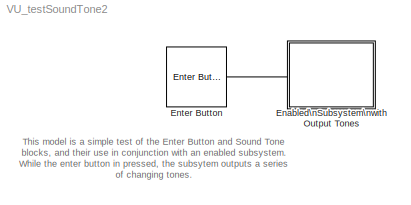
MODEL VU_testSoundTone2
KIND model
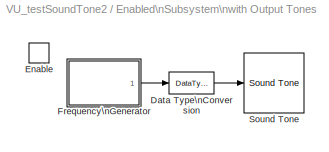
BLOCK [SubSystem] Enabled\nSubsystem\nwith Output Tones
  Ports = [0, 0, 1]
  RequestExecContextInheritance = off
  SID = 2
  TreatAsAtomicUnit = on
BLOCK [DataTypeConversion] Enabled\nSubsystem\nwith Output Tones/Data Type\nConversion
  OutDataTypeStr = uint32
  RndMeth = Floor
  SID = 34
  SaturateOnIntegerOverflow = off
BLOCK [EnablePort] Enabled\nSubsystem\nwith Output Tones/Enable
  Ports = []
  SID = 33
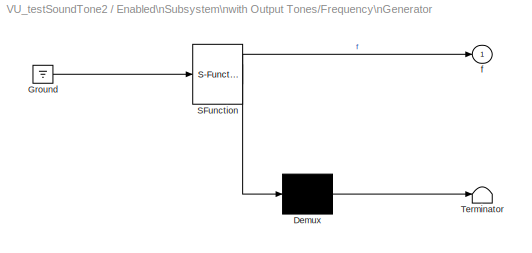
BLOCK [SubSystem] Enabled\nSubsystem\nwith Output Tones/Frequency\nGenerator
  ErrorFcn = Stateflow.Translate.translate
  PermitHierarchicalResolution = ExplicitOnly
  Ports = [0, 1]
  RequestExecContextInheritance = off
  SFBlockType = MATLAB Function
  SID = 31
  SystemSampleTime = 0.2
  TreatAsAtomicUnit = on
BLOCK [Demux] Enabled\nSubsystem\nwith Output Tones/Frequency\nGenerator/ Demux 
  Outputs = 1
  Ports = [1, 1]
  SID = 31::22
BLOCK [Ground] Enabled\nSubsystem\nwith Output Tones/Frequency\nGenerator/ Ground 
  SID = 31::24
BLOCK [S-Function] Enabled\nSubsystem\nwith Output Tones/Frequency\nGenerator/ SFunction 
  EnableBusSupport = off
  FunctionName = sf_sfun
  PortCounts = [1 2]
  Ports = [1, 2]
  SFcnIsStateOwnerBlock = off
  SFunctionDeploymentMode = off
  SID = 31::21
  Tag = Stateflow S-Function 1
BLOCK [Terminator] Enabled\nSubsystem\nwith Output Tones/Frequency\nGenerator/ Terminator 
  SID = 31::23
BLOCK [Outport] Enabled\nSubsystem\nwith Output Tones/Frequency\nGenerator/f
  IconDisplay = Port number
  SID = 31::5
BLOCK [Reference] Enabled\nSubsystem\nwith Output Tones/Sound Tone  REF=lego_nxt_lib/Sound Tone  (lib defined in mdl_3d9a4c0387f8)
  FunctionWithSeparateData = off
  Ports = [1]
  RTWMemSecDataConstants = Inherit from model
  RTWMemSecDataInternal = Inherit from model
  RTWMemSecDataParameters = Inherit from model
  RTWMemSecFuncExecute = Inherit from model
  RTWMemSecFuncInitTerm = Inherit from model
  SID = 32
  ShowPortLabels = FromPortIcon
  SourceBlock = lego_nxt_lib/Sound Tone
  SourceType = Sound Tone
  SystemSampleTime = -1
  freq = 220
  freqsrc = External
  vol = 50
  volsrc = Internal
BLOCK [Reference] Enter Button  REF=lego_nxt_lib/Enter Button  (lib defined in mdl_3d9a4c0387f8)
  Ports = [0, 1]
  SID = 25
  SourceBlock = lego_nxt_lib/Enter Button
  SourceType = Enter Button
  st = 0.1
ANNOTATION (root): This model is a simple test of the Enter Button and Sound Tone\nblocks, and their use in conjunction with an enabled subsystem.\nWhile the enter button in pressed, the subsytem outputs a series\nof changing tones.
LINE Enabled\nSubsystem\nwith Output Tones/Data Type\nConversion:1 -> Enabled\nSubsystem\nwith Output Tones/Sound Tone:1
LINE Enabled\nSubsystem\nwith Output Tones/Frequency\nGenerator/ Demux :1 -> Enabled\nSubsystem\nwith Output Tones/Frequency\nGenerator/ Terminator :1
LINE Enabled\nSubsystem\nwith Output Tones/Frequency\nGenerator/ Ground :1 -> Enabled\nSubsystem\nwith Output Tones/Frequency\nGenerator/ SFunction :1
LINE Enabled\nSubsystem\nwith Output Tones/Frequency\nGenerator/ SFunction :1 -> Enabled\nSubsystem\nwith Output Tones/Frequency\nGenerator/ Demux :1
LINE Enabled\nSubsystem\nwith Output Tones/Frequency\nGenerator/ SFunction :2 -> Enabled\nSubsystem\nwith Output Tones/Frequency\nGenerator/f:1
LINE Enabled\nSubsystem\nwith Output Tones/Frequency\nGenerator:1 -> Enabled\nSubsystem\nwith Output Tones/Data Type\nConversion:1
LINE Enter Button:1 -> Enabled\nSubsystem\nwith Output Tones:enable
CHART Enabled\nSubsystem\nwith Output Tones/Frequency\nGenerator states=1 transitions=1
  STATE_LABEL 'eML_blk_kernel()'
